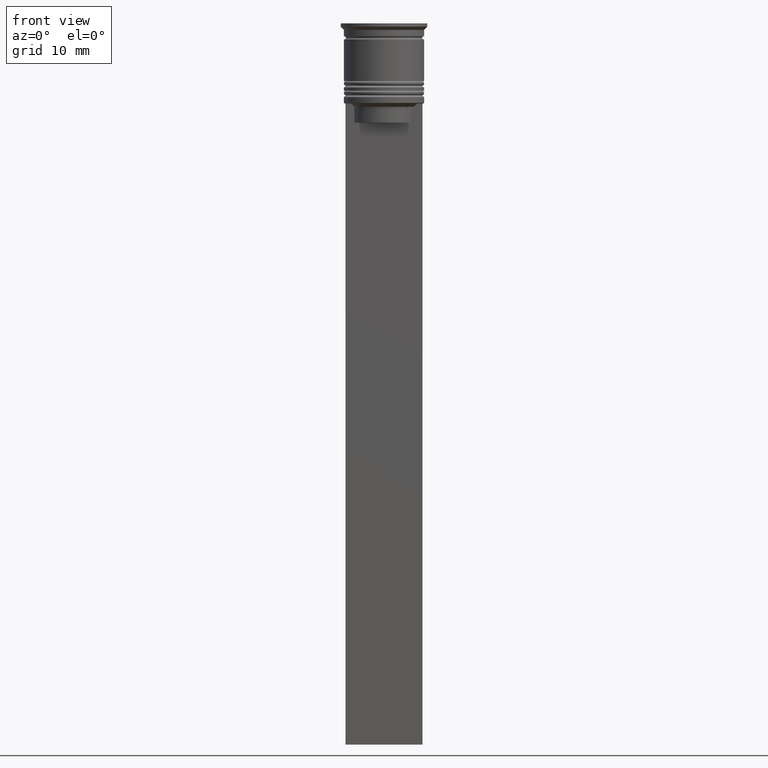
[diagram: clean part render]
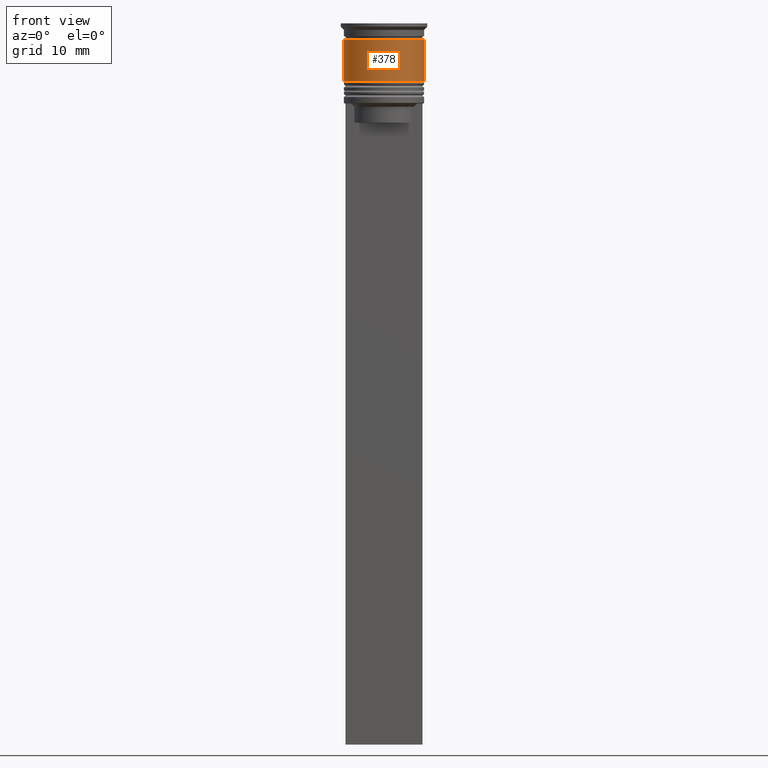
[diagram: same view with one face highlighted and labeled with its STEP entity id]
A machine part, front view. The second image highlights one B-rep face of the part: STEP entity #378.
In plain terms, the highlighted cylindrical surface (partial cylindrical patch) has radius 6.25 mm, axis along (-0, -0, 1).
Its self-contained STEP definition (entity closure, byte-faithful):
#11 = DIRECTION ( 'NONE',  ( -0.000000000000000000, -0.000000000000000000, 1.000000000000000000 ) ) ;
#176 = ORIENTED_EDGE ( 'NONE', *, *, #899, .F. ) ;
#378 = ADVANCED_FACE ( 'NONE', ( #500 ), #1395, .T. ) ;
#431 = EDGE_CURVE ( 'NONE', #1487, #658, #571, .T. ) ;
#435 = DIRECTION ( 'NONE',  ( -0.000000000000000000, -0.000000000000000000, 1.000000000000000000 ) ) ;
#477 = DIRECTION ( 'NONE',  ( 1.000000000000000000, 0.000000000000000000, 0.000000000000000000 ) ) ;
#500 = FACE_OUTER_BOUND ( 'NONE', #2189, .T. ) ;
#545 = CARTESIAN_POINT ( 'NONE',  ( -6.250000000000000000, 7.654042494670957606E-16, 0.000000000000000000 ) ) ;
#571 = LINE ( 'NONE', #586, #838 ) ;
#584 = EDGE_CURVE ( 'NONE', #1475, #1487, #1606, .T. ) ;
#586 = CARTESIAN_POINT ( 'NONE',  ( 6.250000000000000000, 0.000000000000000000, 0.000000000000000000 ) ) ;
#602 = CARTESIAN_POINT ( 'NONE',  ( -6.250000000000001776, 7.654042494670959579E-16, -9.000000000000001776 ) ) ;
#658 = VERTEX_POINT ( 'NONE', #2061 ) ;
#765 = VECTOR ( 'NONE', #11, 1000.000000000000000 ) ;
#838 = VECTOR ( 'NONE', #2238, 1000.000000000000000 ) ;
#849 = DIRECTION ( 'NONE',  ( 1.000000000000000000, 0.000000000000000000, 0.000000000000000000 ) ) ;
#899 = EDGE_CURVE ( 'NONE', #1475, #1136, #2170, .T. ) ;
#1023 = ORIENTED_EDGE ( 'NONE', *, *, #584, .T. ) ;
#1104 = AXIS2_PLACEMENT_3D ( 'NONE', #2130, #1591, #477 ) ;
#1136 = VERTEX_POINT ( 'NONE', #2319 ) ;
#1215 = DIRECTION ( 'NONE',  ( -0.000000000000000000, -0.000000000000000000, 1.000000000000000000 ) ) ;
#1274 = CIRCLE ( 'NONE', #1613, 6.249999999999999112 ) ;
#1395 = CYLINDRICAL_SURFACE ( 'NONE', #1104, 6.250000000000000000 ) ;
#1439 = CARTESIAN_POINT ( 'NONE',  ( 0.000000000000000000, 0.000000000000000000, -2.500000000000000444 ) ) ;
#1475 = VERTEX_POINT ( 'NONE', #602 ) ;
#1487 = VERTEX_POINT ( 'NONE', #2057 ) ;
#1591 = DIRECTION ( 'NONE',  ( -0.000000000000000000, -0.000000000000000000, 1.000000000000000000 ) ) ;
#1606 = CIRCLE ( 'NONE', #1688, 6.250000000000000888 ) ;
#1613 = AXIS2_PLACEMENT_3D ( 'NONE', #1439, #1215, #849 ) ;
#1688 = AXIS2_PLACEMENT_3D ( 'NONE', #1927, #435, #1709 ) ;
#1709 = DIRECTION ( 'NONE',  ( 1.000000000000000000, 0.000000000000000000, 0.000000000000000000 ) ) ;
#1927 = CARTESIAN_POINT ( 'NONE',  ( 0.000000000000000000, 0.000000000000000000, -9.000000000000001776 ) ) ;
#1930 = ORIENTED_EDGE ( 'NONE', *, *, #431, .T. ) ;
#1987 = ORIENTED_EDGE ( 'NONE', *, *, #2043, .F. ) ;
#2043 = EDGE_CURVE ( 'NONE', #1136, #658, #1274, .T. ) ;
#2057 = CARTESIAN_POINT ( 'NONE',  ( 6.250000000000000888, 0.000000000000000000, -9.000000000000001776 ) ) ;
#2061 = CARTESIAN_POINT ( 'NONE',  ( 6.249999999999999112, 0.000000000000000000, -2.500000000000000444 ) ) ;
#2130 = CARTESIAN_POINT ( 'NONE',  ( 0.000000000000000000, 0.000000000000000000, 0.000000000000000000 ) ) ;
#2170 = LINE ( 'NONE', #545, #765 ) ;
#2189 = EDGE_LOOP ( 'NONE', ( #176, #1023, #1930, #1987 ) ) ;
#2238 = DIRECTION ( 'NONE',  ( -0.000000000000000000, -0.000000000000000000, 1.000000000000000000 ) ) ;
#2319 = CARTESIAN_POINT ( 'NONE',  ( -6.249999999999999112, 7.654042494670956620E-16, -2.500000000000000444 ) ) ;